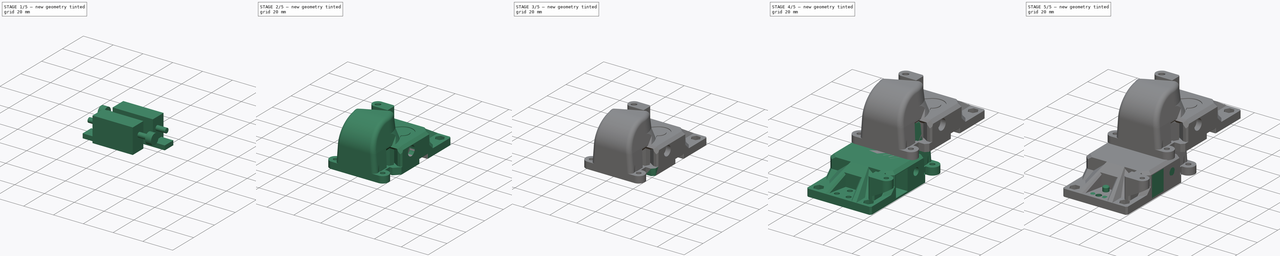
[diagram: build sequence overview — one tinted view per stage of 5, left to right]
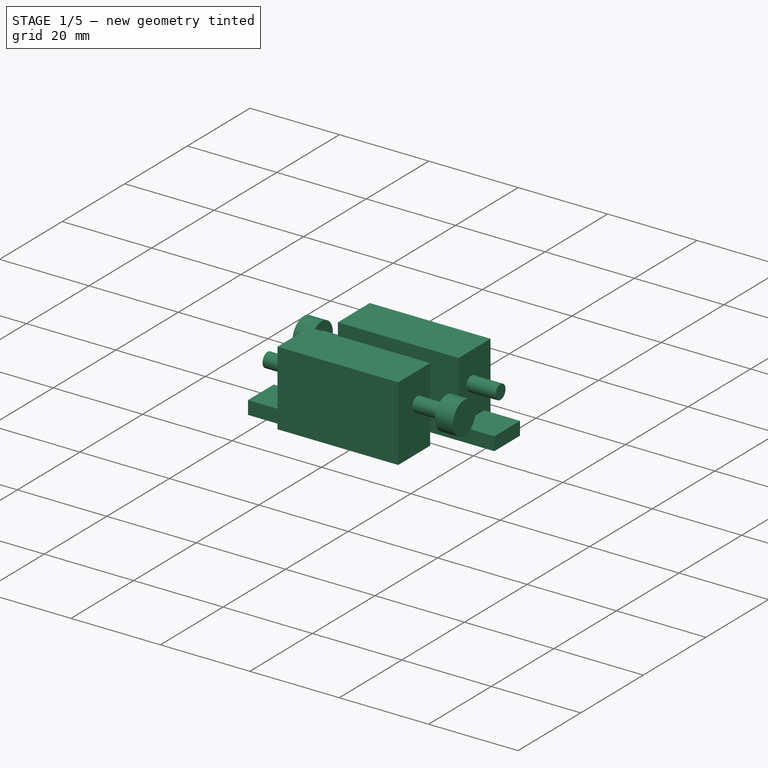
[diagram: stage 1 of 5 — iso view after this stage's code; geometry added in this stage tinted green]
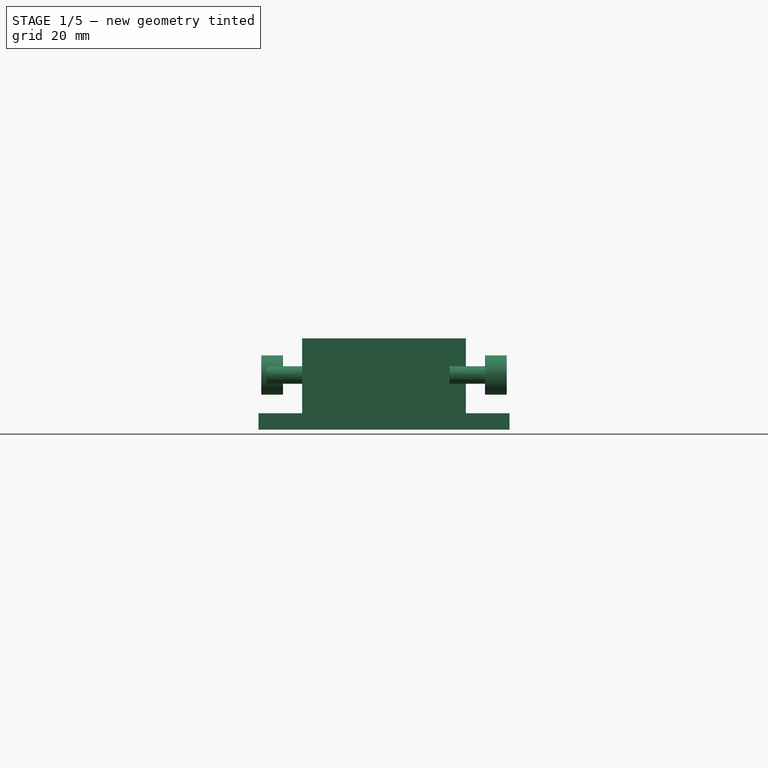
[diagram: stage 1 of 5 — front view after this stage's code; geometry added in this stage tinted green]
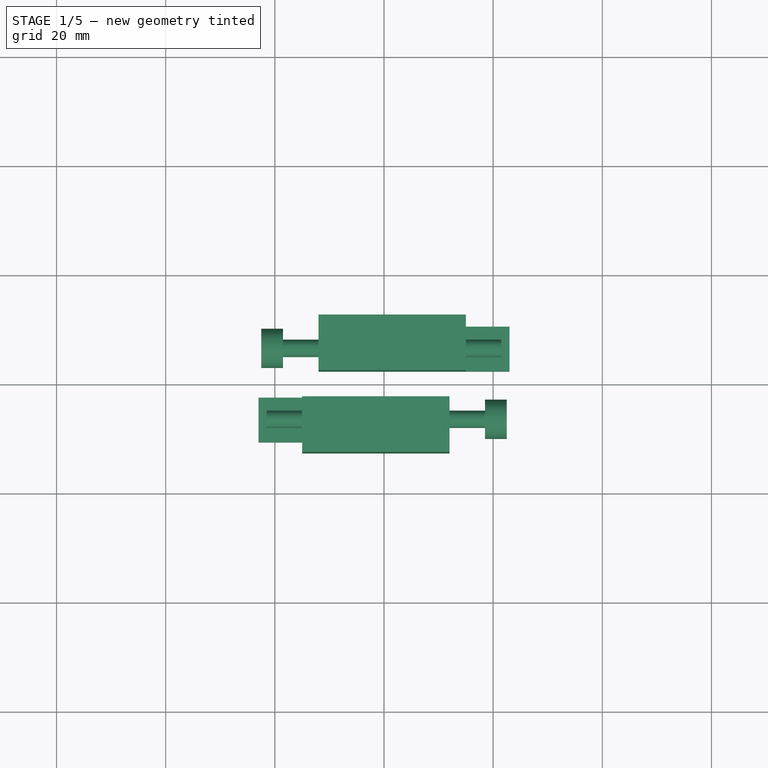
[diagram: stage 1 of 5 — top view after this stage's code; geometry added in this stage tinted green]
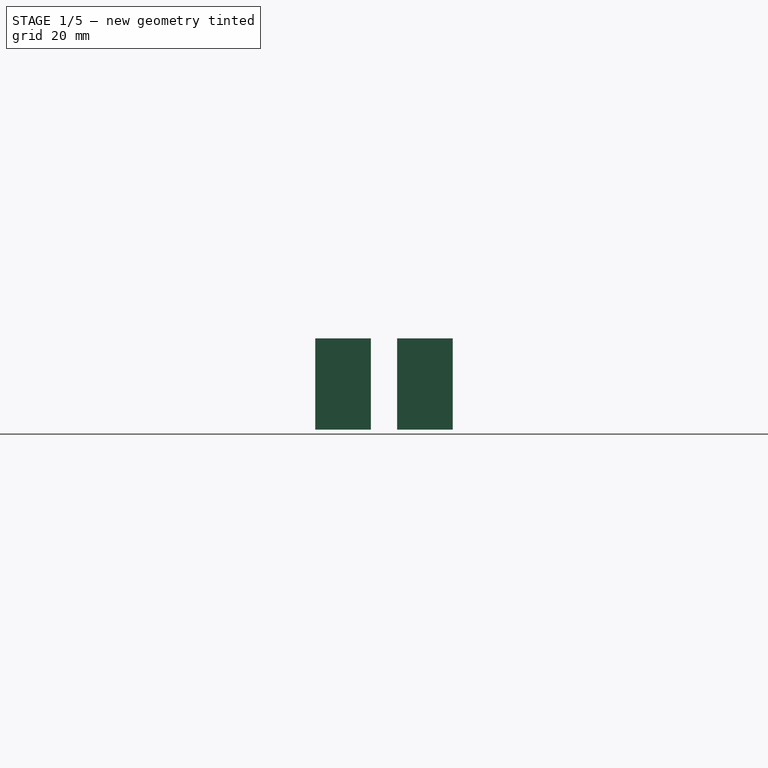
[diagram: stage 1 of 5 — right view after this stage's code; geometry added in this stage tinted green]
FCSTD DOCUMENT  (FreeCAD 0.19R24291 (Git))
Label: back-plate-eva-2p4
License: Other
LicenseURL: GPL3
objects: PartDesign::Pad×21, Sketcher::SketchObject×10, Part::MultiFuse×6, Part::Feature×6, PartDesign::Body×6, Part::Cylinder×5, Part::Box×4, Part::Cut×4, PartDesign::FeatureBase×2, PartDesign::Pocket×2, PartDesign::Chamfer×2, Part::MultiCommon×2, Part::Chamfer×1
note: 96 computed .brp shape members not serialized (recipe doc carries the construction recipe); baked Part::Feature solids carry a one-line shape summary decoded from their .brp

FEATURE [Part::Cylinder] Cylinder019
  Angle = 360
  AttacherType = Attacher::AttachEngine3D
  Height = 4
  Placement = pos=(-18.5,6.5,13.5) rot=(0.707107,0,-0.707107;3.14159rad)
  Radius = 3.6
FEATURE [Part::Box] Box024  label="belt-slot004"
  AttacherType = Attacher::AttachEngine3D
  Height = 10.2
  Length = 27
  Placement = pos=(-12,12.6,3.5) rot=(1,0,0;1.5708rad)
  Width = 16.7
FEATURE [Part::Box] Box025  label="belt-slot005"
  AttacherType = Attacher::AttachEngine3D
  Height = 10.2
  Length = 27
  Placement = pos=(-15,-2.4,3.5) rot=(1,0,0;1.5708rad)
  Width = 16.7
FEATURE [Part::Cylinder] Cylinder020
  Angle = 360
  AttacherType = Attacher::AttachEngine3D
  Height = 44
  Placement = pos=(21.5,6.5,13.5) rot=(0.707107,0,-0.707107;3.14159rad)
  Radius = 1.6
FEATURE [Part::Cylinder] Cylinder021
  Angle = 360
  AttacherType = Attacher::AttachEngine3D
  Height = 44
  Placement = pos=(-21.5,-6.5,13.5) rot=(0,1,0;1.5708rad)
  Radius = 1.6
FEATURE [Part::Cylinder] Cylinder022
  Angle = 360
  AttacherType = Attacher::AttachEngine3D
  Height = 4
  Placement = pos=(18.5,-6.5,13.5) rot=(0,1,0;1.5708rad)
  Radius = 3.6
FEATURE [Part::Box] Box027  label="Cube023"
  AttacherType = Attacher::AttachEngine3D
  Height = 3
  Length = 10
  Placement = pos=(13,4.9,3.5) rot=(0,0,1;0rad)
  Width = 8.2
FEATURE [Part::Box] Box028  label="Cube024"
  AttacherType = Attacher::AttachEngine3D
  Height = 3
  Length = 10
  Placement = pos=(-23,-8.1,3.5) rot=(0,0,1;0rad)
  Width = 8.2
FEATURE [Part::MultiFuse] Fusion001007011032
  Placement = pos=(0,-2.5,0) rot=(0,0,1;0rad)
  Shapes = -> [Box028,Box027]
FEATURE [Part::MultiFuse] Fusion001007011058
  Shapes = -> [Box024,Box025]
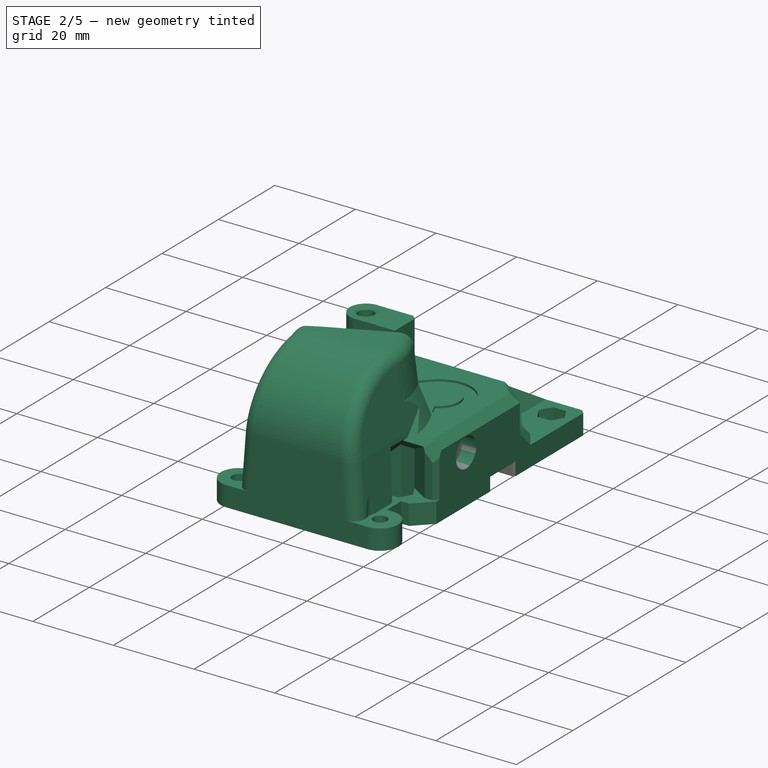
[diagram: stage 2 of 5 — iso view after this stage's code; geometry added in this stage tinted green]
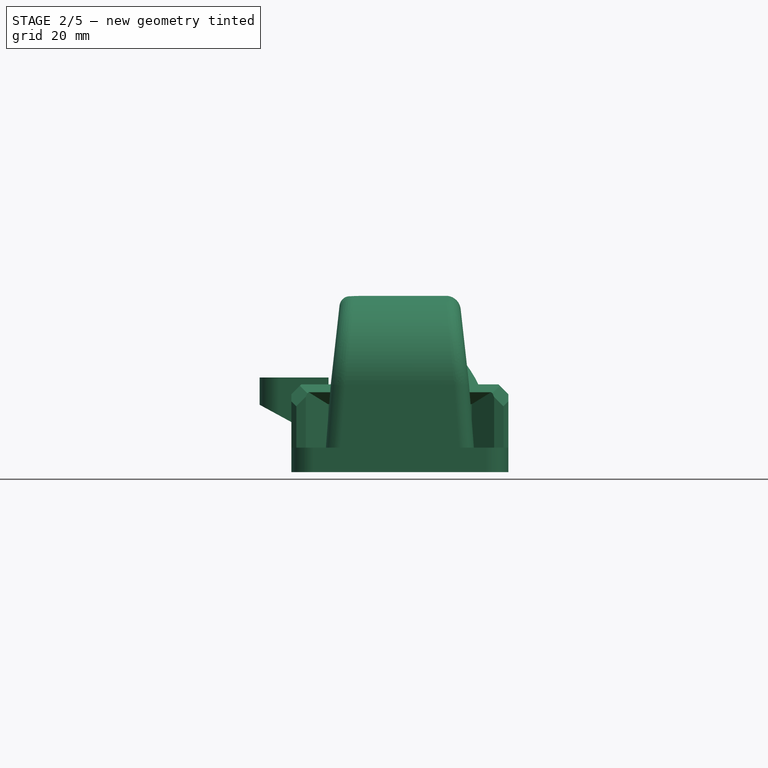
[diagram: stage 2 of 5 — front view after this stage's code; geometry added in this stage tinted green]
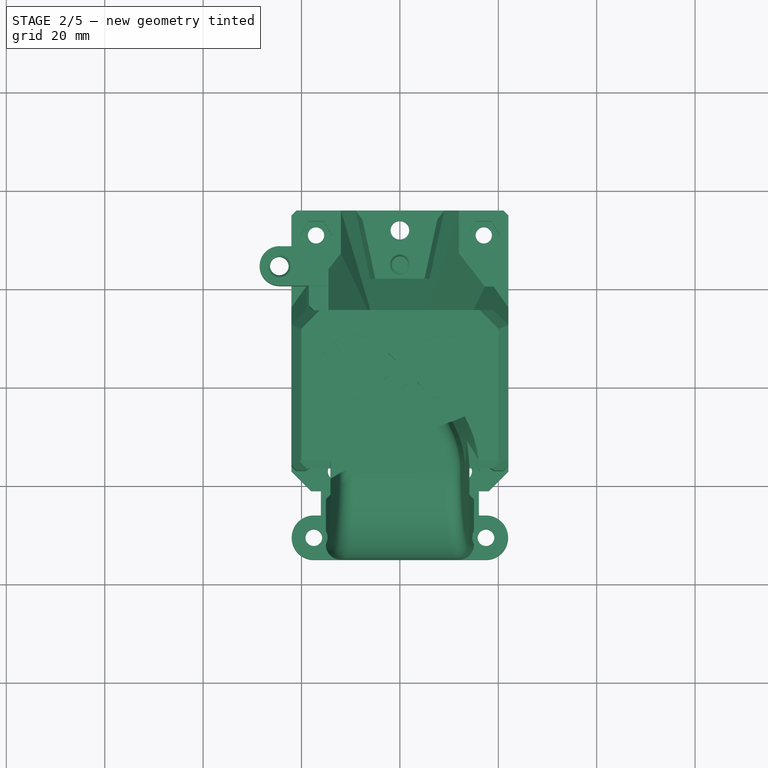
[diagram: stage 2 of 5 — top view after this stage's code; geometry added in this stage tinted green]
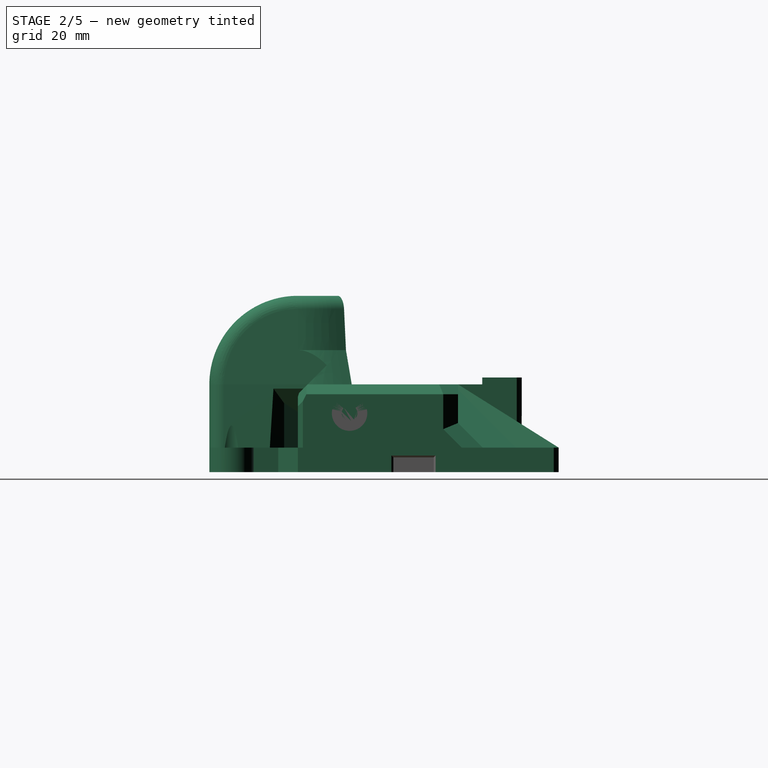
[diagram: stage 2 of 5 — right view after this stage's code; geometry added in this stage tinted green]
FEATURE [Part::MultiFuse] Fusion001007011029
  Placement = pos=(0,0,2) rot=(0,0,1;0rad)
  Shapes = -> [Cylinder022,Cylinder019,Cylinder020,Cylinder021]
FEATURE [Part::MultiFuse] Fusion001007011059  label="2020-cutout"
  Shapes = -> [Fusion001007011032,Fusion001007011058,Fusion001007011029]
FEATURE [PartDesign::Body] Body  label="back-plate-modified-base"
  BaseFeature = -> Part__Feature112001136
  Group = -> [BaseFeature,Pad,Pad001,Pad002,Pad003,Pad004,Pad005,Pad006,Pad007,Pad008,Sketch,Pocket,Pad009,Pad010,Pad011,Pad012,Sketch001,Pocket001,Sketch002,Pad013,Chamfer,Sketch003,Pad014,Sketch004,Pad015]
  Origin = -> Origin
  Placement = pos=(-5e-15,-40,17.5) rot=(0,0,1;3.14159rad)
  Tip = -> Pad015
FEATURE [Part::Feature] Body001003001001  label="back-plate-modified-base006"
  shape: bbox 51.76 x 72.2 x 37.05 mm, 205 faces (baked)
FEATURE [Part::Cut] Cut001005003001008
  Base = -> Body001003001001
  Tool = -> Fusion001007011059
FEATURE [Part::Cut] Cut001005003001009
  Base = -> Cut001005003001008
  Tool = -> Frantic_Trug_1_001001_solid003
FEATURE [Part::Feature] Fusion036012039011002025018010027013001002002001002001029004001010001015008003008006  label="hollow-cut002"
  shape: bbox 17 x 40.5 x 12.5 mm, 12 faces, 2 solids (baked)
FEATURE [Part::Cylinder] Cylinder  label="thread-insert-hole"
  Angle = 360
  AttacherType = Attacher::AttachEngine3D
  Height = 11
  Placement = pos=(-24.5,24.5,12.75) rot=(0,0,1;0rad)
  Radius = 1.9
FEATURE [Part::Feature] Cut001005003001012001  label="hole-fill"
  shape: bbox 8 x 8 x 9.896 mm, 3 faces (baked)
FEATURE [Part::Cut] Cut001005003001012005
  Base = -> Cut001005003001009
  Tool = -> Fusion036012039011002025018010027013001002002001002001029004001010001015008003008006
FEATURE [Part::MultiFuse] Fusion036012039011002025018010027013001002002001002001029004001010001015008003008008
  Shapes = -> [Cut001005003001012001,Cut001005003001012005]
FEATURE [Part::Cut] Cut001005003001012006
  Base = -> Fusion036012039011002025018010027013001002002001002001029004001010001015008003008008
  Tool = -> Cylinder
FEATURE [Part::Chamfer] Chamfer005021077002006007019003032019  label="back-plate-2p4-r3"
  Base = -> Cut001005003001012006
  Edges = 7 edges r=0.4: [Edge5,Edge940,Edge941,Edge942,Edge1051,Edge1052,Edge1053]
FEATURE [PartDesign::FeatureBase] BaseFeature001
  BaseFeature = -> Chamfer005021077002006007019003032019
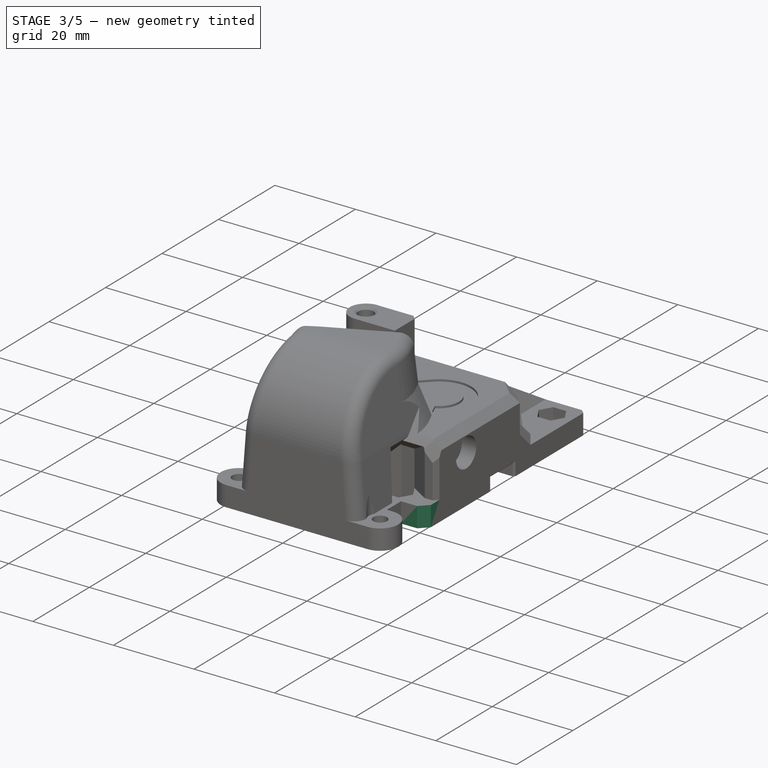
[diagram: stage 3 of 5 — iso view after this stage's code; geometry added in this stage tinted green]
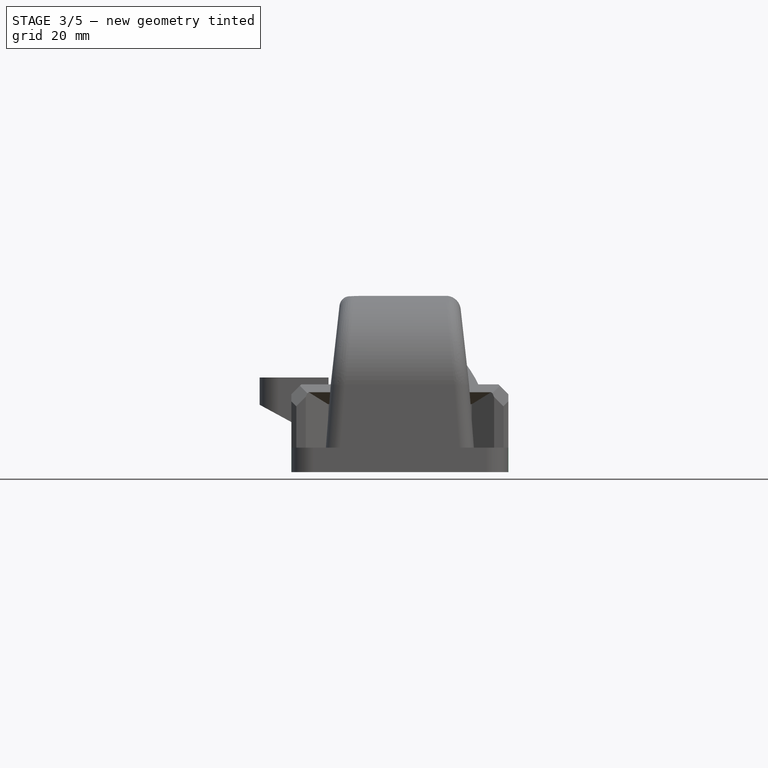
[diagram: stage 3 of 5 — front view after this stage's code; geometry added in this stage tinted green]
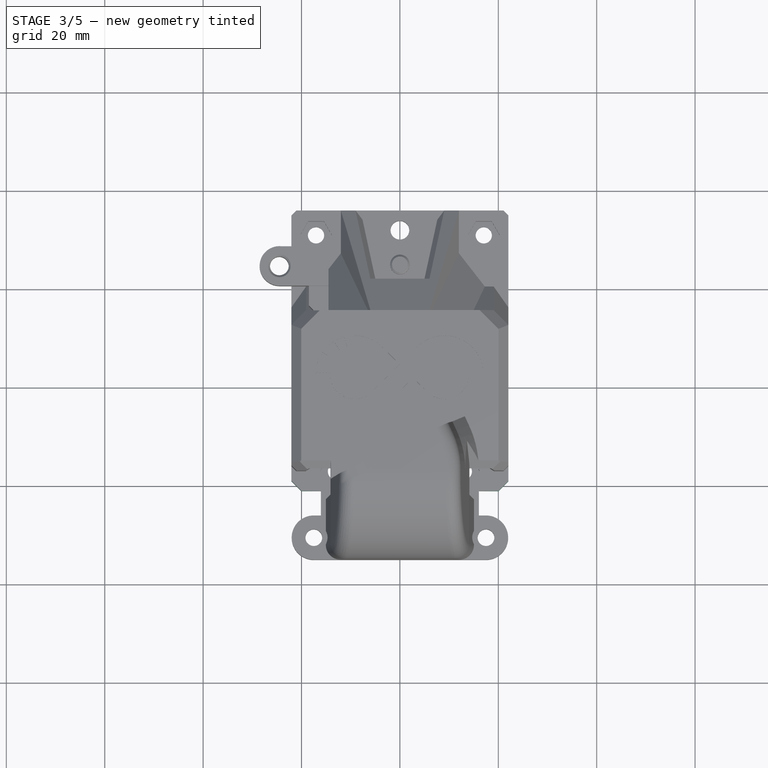
[diagram: stage 3 of 5 — top view after this stage's code; geometry added in this stage tinted green]
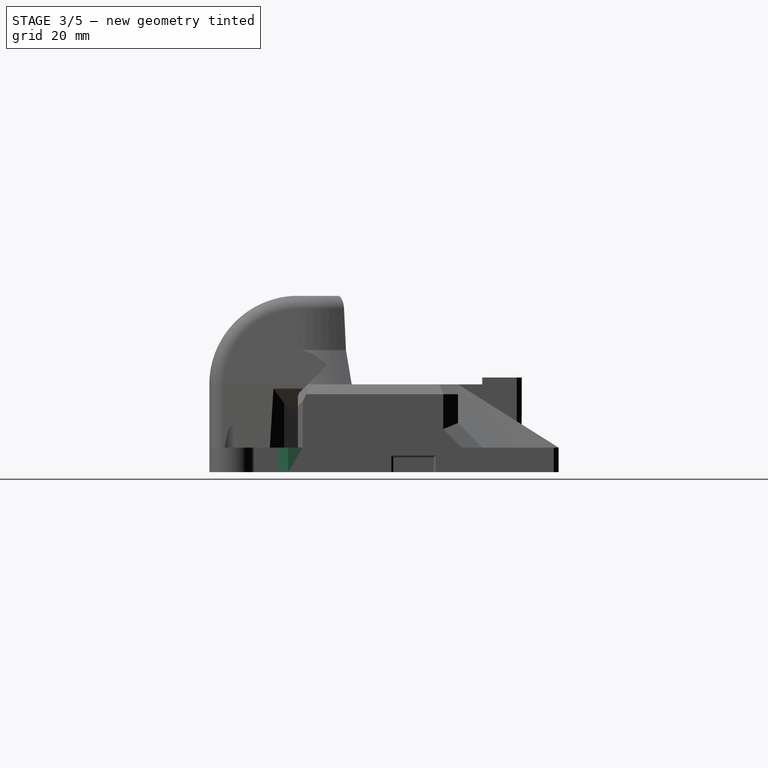
[diagram: stage 3 of 5 — right view after this stage's code; geometry added in this stage tinted green]
FEATURE [Sketcher::SketchObject] Sketch005
  FullyConstrained = false
  MapMode = 5
  Placement = pos=(0,0,0) rot=(0.57735,0.57735,0.57735;2.0944rad)
  Support = -> [YZ_Plane001]
  sketch-geometry (11):
    g0: LineSegment StartX=-14.5 StartY=8.5 StartZ=0 EndX=-20.5 EndY=8.5 EndZ=0
    g1: LineSegment StartX=-14.5 StartY=8.5 StartZ=0 EndX=-14.5 EndY=21 EndZ=0
    g2-g6: Circle x5 (B-spline internal-alignment scaffolding for g7; pole/knot coordinates omitted)
    g7: BSplineCurve PolesCount=5 KnotsCount=3 Degree=3 IsPeriodic=0
    g8: GeomPoint X=-14.5 Y=21 Z=0
    g9: GeomPoint X=-19.3188 Y=17.899 Z=0
    g10: GeomPoint X=-20.5 Y=8.5 Z=0
  constraints (11):
    c: Horizontal(g0)
    c: Coincident(g1,g0)
    c: Vertical(g1)
    c: Coincident(g7,g1)
    c: Weight(g2) = 1
    c: Equal(g2, g3-g6) x4
    c: Coincident(g7,g0)
    c: InternalAlignment(g2-g6 -> g7) x5
    c: InternalAlignment(g8,g7)
    c: InternalAlignment(g9,g7)
    c: InternalAlignment(g10,g7)
FEATURE [PartDesign::Pad] Pad016
  Direction = (1,1,1)
  Length = 17
  Length2 = 100
  Placement = pos=(0,0,0) rot=(0.57735,0.57735,0.57735;2.0944rad)
  Profile = -> Sketch005
  Type = 0
FEATURE [PartDesign::Body] Body001003001003  label="bottom-cut"
  Group = -> [Sketch005,Pad016]
  Origin = -> Origin001
  Placement = pos=(-8.5,0,0) rot=(0,0,1;0rad)
  Tip = -> Pad016
FEATURE [Sketcher::SketchObject] Sketch007
  FullyConstrained = false
  MapMode = 5
  Placement = pos=(0,0,0) rot=(0.57735,0.57735,0.57735;2.0944rad)
  Support = -> [YZ_Plane002]
  sketch-geometry (4):
    g0: LineSegment StartX=14.5 StartY=0 StartZ=0 EndX=20 EndY=0 EndZ=0
    g1: LineSegment StartX=14.5 StartY=11 StartZ=0 EndX=14.5 EndY=0 EndZ=0
    g2: LineSegment StartX=20 StartY=0 StartZ=0 EndX=20 EndY=5.5 EndZ=0
    g3: LineSegment StartX=20 StartY=5.5 StartZ=0 EndX=14.5 EndY=11 EndZ=0
  constraints (7):
    c: PointOnObject(g0,g-1)
    c: PointOnObject(g0,g-1)
    c: Coincident(g1,g0)
    c: Vertical(g1)
    c: Coincident(g2,g0)
    c: Vertical(g2)
    c: Coincident(g3,g2)
FEATURE [PartDesign::Pad] Pad017
  Direction = (1,1,1)
  Length = 30
  Length2 = 100
  Midplane = true
  Placement = pos=(0,0,0) rot=(0.57735,0.57735,0.57735;2.0944rad)
  Profile = -> Sketch007
  Type = 0
FEATURE [PartDesign::Body] Body001003001004
  Group = -> [Sketch007,Pad017]
  Origin = -> Origin002
  Tip = -> Pad017
FEATURE [Sketcher::SketchObject] Sketch008
  FullyConstrained = false
  MapMode = 5
  Support = -> [XY_Plane003]
  sketch-geometry (4):
    g0: LineSegment StartX=-15 StartY=14 StartZ=0 EndX=15 EndY=14 EndZ=0
    g1: LineSegment StartX=-15 StartY=14 StartZ=0 EndX=-11 EndY=20 EndZ=0
    g2: LineSegment StartX=15 StartY=14 StartZ=0 EndX=10 EndY=20 EndZ=0
    g3: LineSegment StartX=-11 StartY=20 StartZ=0 EndX=10 EndY=20 EndZ=0
  constraints (8):
    c: Horizontal(g0)
    c: DistanceX(g0,g0) = 30
    c: DistanceX(g0,g-1) = 15
    c: Coincident(g1,g0)
    c: Coincident(g2,g0)
    c: Coincident(g3,g1)
    c: Coincident(g3,g2)
    c: Horizontal(g3)
FEATURE [PartDesign::Pad] Pad018
  Direction = (1,1,1)
  Length = 10
  Length2 = 100
  Profile = -> Sketch008
  Type = 0
FEATURE [PartDesign::Body] Body001003001005
  Group = -> [Sketch008,Pad018]
  Origin = -> Origin003
  Tip = -> Pad018
FEATURE [Sketcher::SketchObject] Sketch009
  FullyConstrained = false
  MapMode = 5
  Placement = pos=(0,0,0) rot=(1,0,0;1.5708rad)
  Support = -> [XZ_Plane004]
  sketch-geometry (4):
    g0: LineSegment StartX=-7 StartY=0 StartZ=0 EndX=7 EndY=0 EndZ=0
    g1: LineSegment StartX=-7 StartY=0 StartZ=0 EndX=-2 EndY=13 EndZ=0
    g2: LineSegment StartX=7 StartY=0 StartZ=0 EndX=2 EndY=13 EndZ=0
    g3: LineSegment StartX=-2 StartY=13 StartZ=0 EndX=2 EndY=13 EndZ=0
  constraints (9):
    c: PointOnObject(g0,g-1)
    c: Horizontal(g0)
    c: DistanceX(g0,g0) = 14
    c: DistanceX(g0,g-1) = 7
    c: Coincident(g1,g0)
    c: Coincident(g2,g0)
    c: Coincident(g3,g1)
    c: Coincident(g3,g2)
    c: Horizontal(g3)
FEATURE [PartDesign::Pad] Pad019
  Direction = (1,1,1)
  Length = 10
  Length2 = 100
  Placement = pos=(0,0,0) rot=(1,0,0;1.5708rad)
  Profile = -> Sketch009
  Type = 0
FEATURE [PartDesign::Body] Body001003001006
  Group = -> [Sketch009,Pad019]
  Origin = -> Origin004
  Placement = pos=(0,21,0) rot=(0,0,1;0rad)
  Tip = -> Pad019
FEATURE [Part::MultiCommon] Common
  Shapes = -> [Body001003001006,Body001003001005]
FEATURE [Part::MultiCommon] Common001  label="top-cut"
  Placement = pos=(0,0,8.5) rot=(0,0,1;0rad)
  Shapes = -> [Common,Body001003001004]
FEATURE [Part::MultiFuse] Fusion  label="hollow-cut"
  Shapes = -> [Body001003001003,Common001]
FEATURE [Sketcher::SketchObject] Sketch010
  ExternalGeometry = -> [BaseFeature001]
  FullyConstrained = true
  MapMode = 5
  Placement = pos=(1e-15,-2e-16,3.5) rot=(1,0,0;3.14159rad)
  Support = -> [BaseFeature001]
  sketch-geometry (6):
    g0: LineSegment StartX=-22.05 StartY=17 StartZ=0 EndX=-18.05 EndY=21 EndZ=0
    g1: LineSegment StartX=-18.05 StartY=21 StartZ=0 EndX=-22.05 EndY=21 EndZ=0
    g2: LineSegment StartX=-22.05 StartY=21 StartZ=0 EndX=-22.05 EndY=17 EndZ=0
    g3: LineSegment StartX=18.05 StartY=21 StartZ=0 EndX=22.05 EndY=21 EndZ=0
    g4: LineSegment StartX=22.05 StartY=21 StartZ=0 EndX=22.05 EndY=17 EndZ=0
    g5: LineSegment StartX=22.05 StartY=17 StartZ=0 EndX=18.05 EndY=21 EndZ=0
  constraints (14):
    c: Coincident(g-3,g0)
    c: Coincident(g0,g-3)
    c: Coincident(g0,g1)
    c: Horizontal(g1)
    c: Coincident(g1,g2)
    c: Coincident(g2,g0)
    c: Coincident(g-4,g3)
    c: Horizontal(g3)
    c: Coincident(g3,g4)
    c: Coincident(g4,g-4)
    c: Coincident(g4,g5)
    c: Coincident(g5,g3)
    c: Vertical(g2)
    c: Vertical(g4)
FEATURE [PartDesign::Pad] Pad020
  BaseFeature = -> BaseFeature001
  Direction = (1,1,1)
  Length = 10
  Length2 = 100
  Profile = -> Sketch010
  Reversed = true
  Type = 3
  UpToFace = -> BaseFeature001 [Face347]
FEATURE [PartDesign::Chamfer] Chamfer005021077002006007019003032020
  Angle = 45
  Base = -> Pad020 [Edge1241,Edge1153]
  BaseFeature = -> Pad020
  ChamferType = 0
  FlipDirection = false
  Refine = true
  Size = 2
  Size2 = 1
  SupportTransform = false
FEATURE [PartDesign::Body] Body001003001007
  BaseFeature = -> Chamfer005021077002006007019003032019
  Group = -> [BaseFeature001,Sketch010,Pad020,Chamfer005021077002006007019003032020]
  Origin = -> Origin005
  Tip = -> Chamfer005021077002006007019003032020
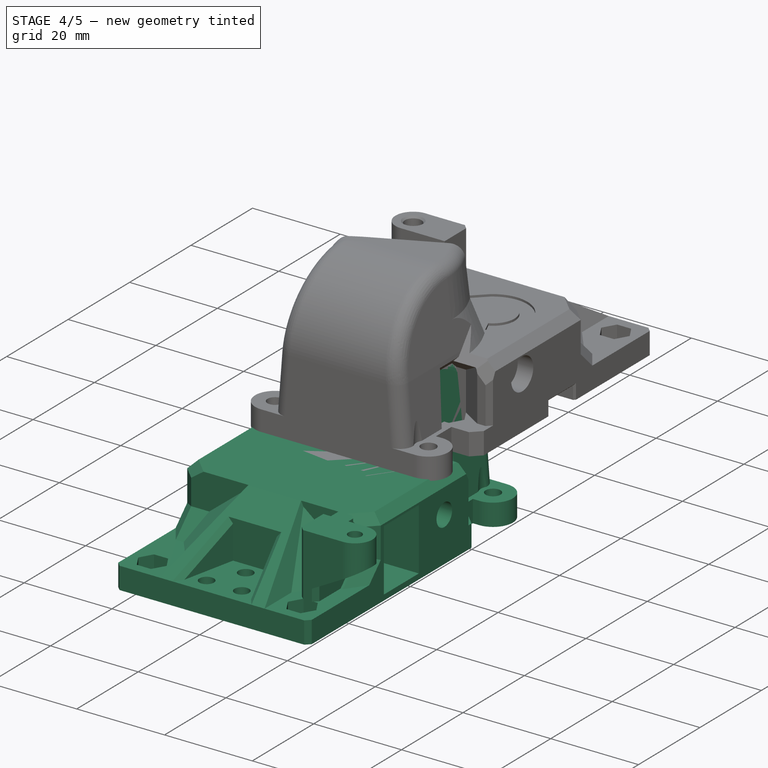
[diagram: stage 4 of 5 — iso view after this stage's code; geometry added in this stage tinted green]
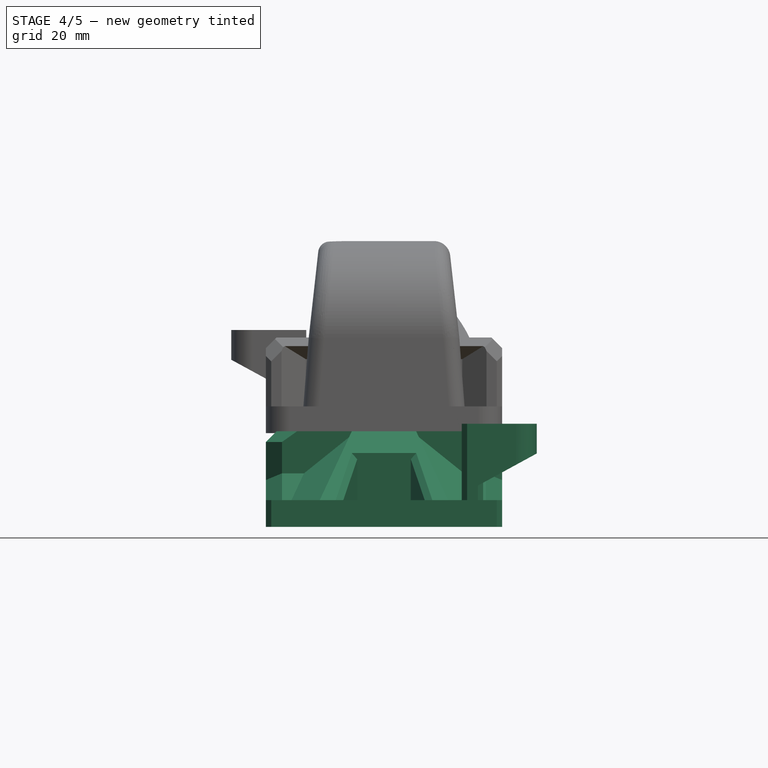
[diagram: stage 4 of 5 — front view after this stage's code; geometry added in this stage tinted green]
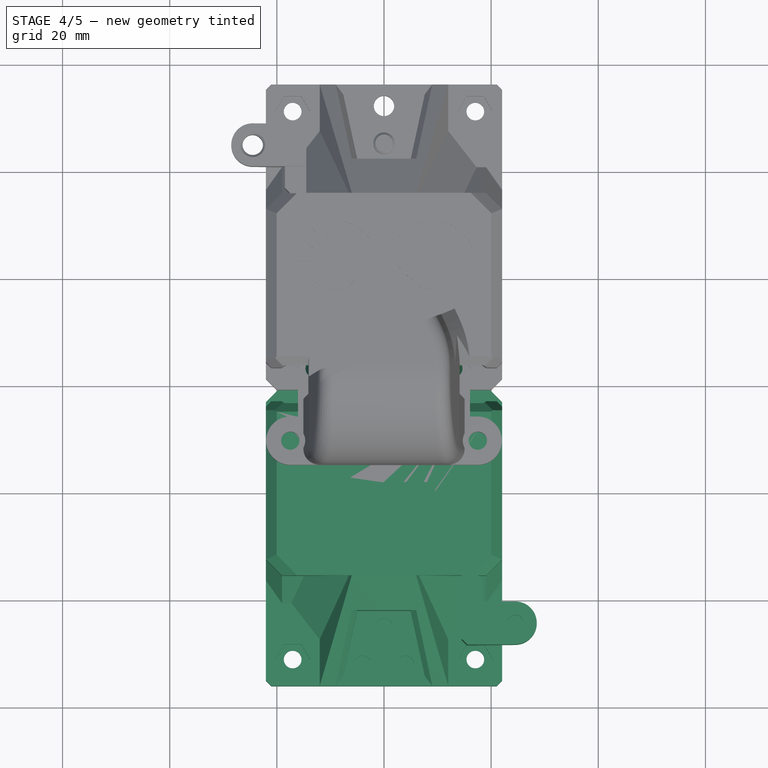
[diagram: stage 4 of 5 — top view after this stage's code; geometry added in this stage tinted green]
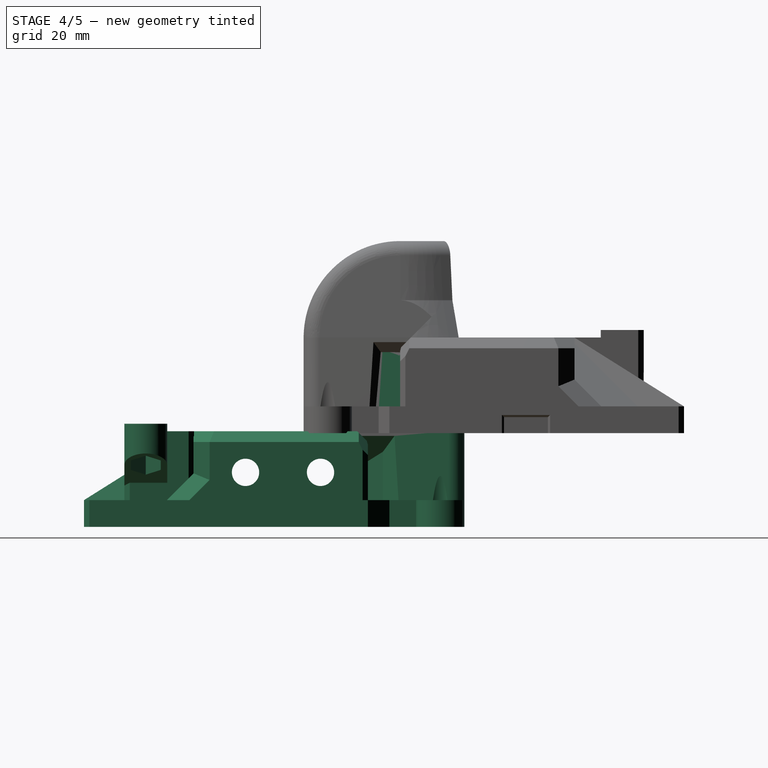
[diagram: stage 4 of 5 — right view after this stage's code; geometry added in this stage tinted green]
FEATURE [Part::Feature] Frantic_Trug_1_001001_solid001  label="snakeoil-logo"
  Placement = pos=(13,-13.5,20.85) rot=(0,0,1;0rad)
  shape: bbox 37 x 22 x 4 mm, 291 faces (baked)
FEATURE [Part::Feature] Part__Feature112001136  label="back_corexy-2p4-origin"
  Placement = pos=(-5e-15,-40,17.5) rot=(0,0,1;3.14159rad)
  shape: bbox 50.57 x 71.01 x 35.86 mm, 357 faces (baked)
FEATURE [PartDesign::FeatureBase] BaseFeature
  BaseFeature = -> Part__Feature112001136
FEATURE [PartDesign::Pad] Pad
  BaseFeature = -> BaseFeature
  Direction = (1,1,1)
  Length = 3
  Length2 = 100
  Profile = -> BaseFeature [Face215]
  Type = 0
FEATURE [PartDesign::Pad] Pad001
  BaseFeature = -> Pad
  Direction = (1,1,1)
  Length = 3
  Length2 = 100
  Profile = -> Pad [Face217]
  Type = 0
FEATURE [PartDesign::Pad] Pad002
  BaseFeature = -> Pad001
  Direction = (1,1,1)
  Length = 0.4
  Length2 = 100
  Profile = -> Pad001 [Face273]
  Type = 0
FEATURE [PartDesign::Pad] Pad003
  BaseFeature = -> Pad002
  Direction = (1,1,1)
  Length = 0.4
  Length2 = 100
  Profile = -> Pad002 [Face240]
  Type = 0
FEATURE [PartDesign::Pad] Pad004
  BaseFeature = -> Pad003
  Direction = (1,1,1)
  Length = 0.4
  Length2 = 100
  Profile = -> Pad003 [Face249]
  Type = 0
FEATURE [PartDesign::Pad] Pad005
  BaseFeature = -> Pad004
  Direction = (1,1,1)
  Length = 0.4
  Length2 = 100
  Profile = -> Pad004 [Face218]
  Type = 0
FEATURE [PartDesign::Pad] Pad006
  BaseFeature = -> Pad005
  Direction = (1,1,1)
  Length = 0.4
  Length2 = 100
  Profile = -> Pad005 [Face229]
  Type = 0
FEATURE [PartDesign::Pad] Pad007
  BaseFeature = -> Pad006
  Direction = (1,1,1)
  Length = 0.4
  Length2 = 100
  Profile = -> Pad006 [Face214]
  Type = 0
FEATURE [PartDesign::Pad] Pad008
  BaseFeature = -> Pad007
  Direction = (1,1,1)
  Length = 0.4
  Length2 = 100
  Profile = -> Pad007 [Face181]
  Type = 0
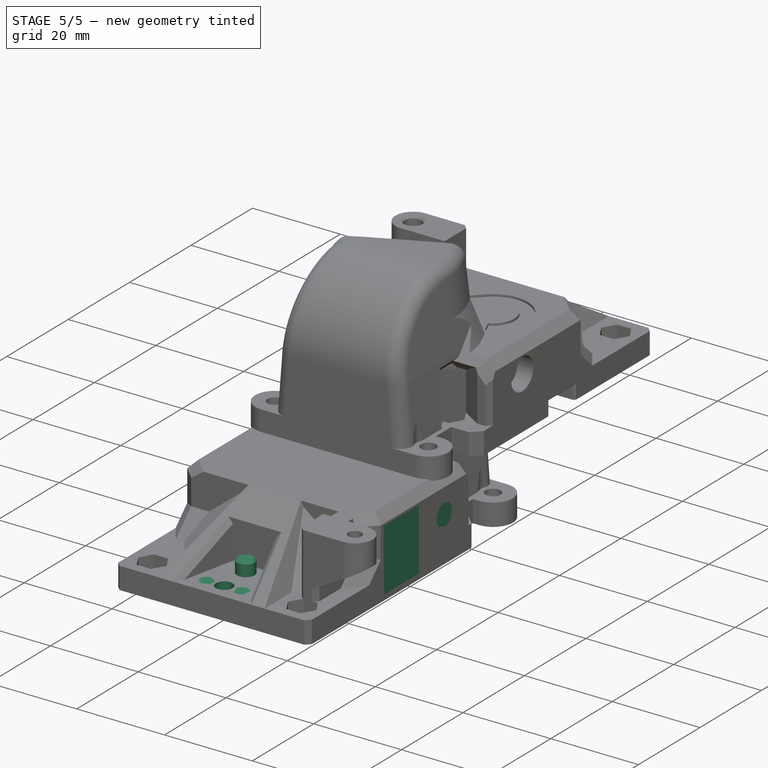
[diagram: stage 5 of 5 — iso view after this stage's code; geometry added in this stage tinted green]
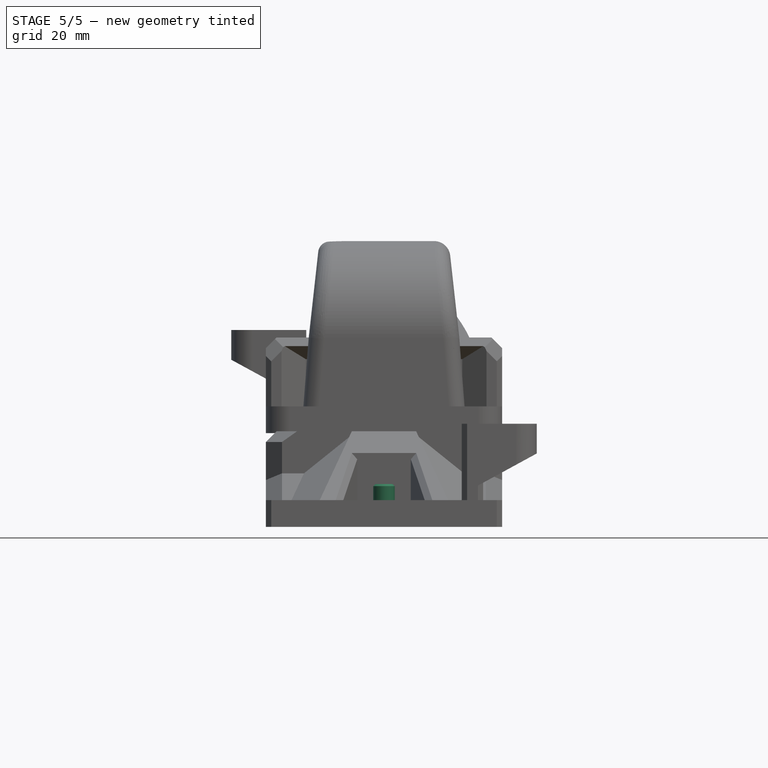
[diagram: stage 5 of 5 — front view after this stage's code; geometry added in this stage tinted green]
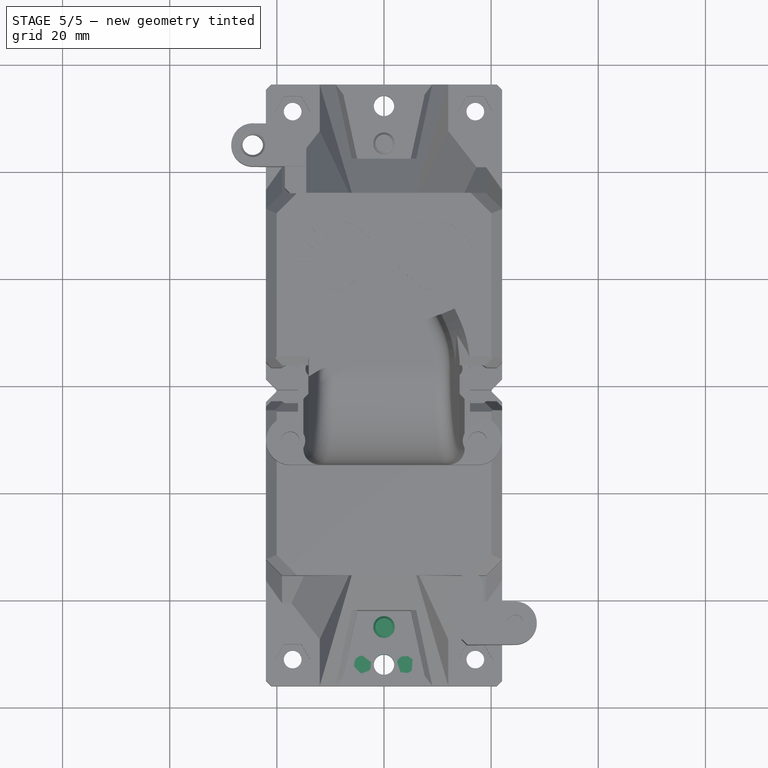
[diagram: stage 5 of 5 — top view after this stage's code; geometry added in this stage tinted green]
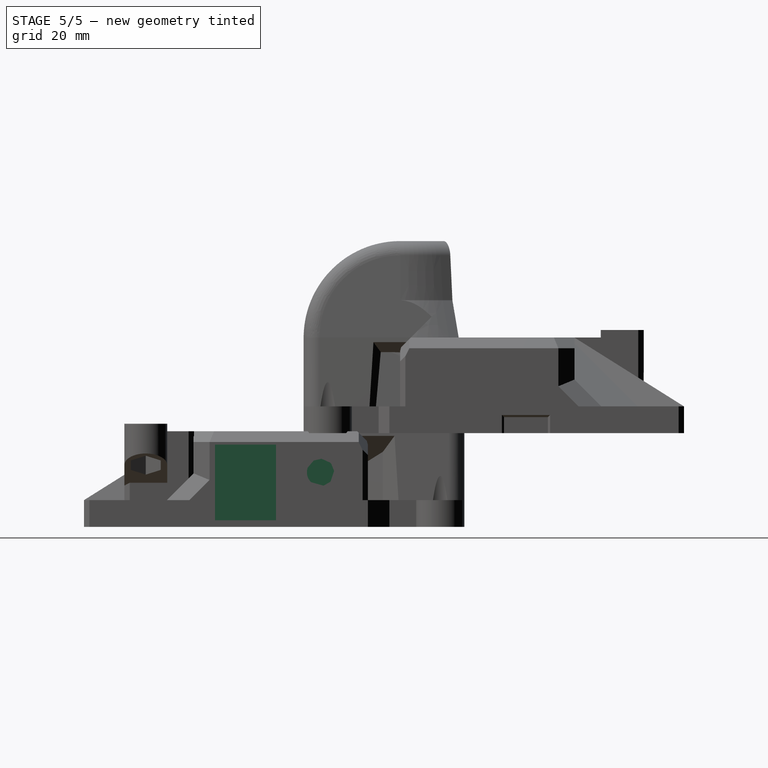
[diagram: stage 5 of 5 — right view after this stage's code; geometry added in this stage tinted green]
FEATURE [Sketcher::SketchObject] Sketch
  FullyConstrained = true
  MapMode = 5
  Placement = pos=(10.646,-22.8304,1.18e-14) rot=(0.954201,0.211541,0.211541;1.61766rad)
  Support = -> [Pad008]
  sketch-geometry (4):
    g0: LineSegment StartX=-20.25 StartY=20.45 StartZ=0 EndX=0.25 EndY=20.45 EndZ=0
    g1: LineSegment StartX=0.25 StartY=20.45 StartZ=0 EndX=0.25 EndY=5.25 EndZ=0
    g2: LineSegment StartX=0.25 StartY=5.25 StartZ=0 EndX=-20.25 EndY=5.25 EndZ=0
    g3: LineSegment StartX=-20.25 StartY=5.25 StartZ=0 EndX=-20.25 EndY=20.45 EndZ=0
  constraints (12):
    c: Coincident(g0,g1)
    c: Coincident(g1,g2)
    c: Coincident(g2,g3)
    c: Coincident(g3,g0)
    c: Horizontal(g0)
    c: Horizontal(g2)
    c: Vertical(g1)
    c: Vertical(g3)
    c: DistanceX(g0,g0) = 20.5
    c: DistanceY(g1,g1) = 15.2
    c: DistanceY(g-1,g2) = 5.25
    c: DistanceX(g2,g-1) = 20.25
FEATURE [PartDesign::Pocket] Pocket
  BaseFeature = -> Pad008
  Length = 0
  Length2 = 100
  Profile = -> Sketch
  Type = 3
  UpToFace = -> Pad008 [Face234]
FEATURE [Part::Feature] Frantic_Trug_1_001001_solid003  label="snakeoil-logo002"
  Placement = pos=(13,-13.5,20.85) rot=(0,0,1;0rad)
  shape: bbox 37 x 22 x 4 mm, 291 faces (baked)
FEATURE [PartDesign::Pad] Pad009
  BaseFeature = -> Pocket
  Direction = (1,1,1)
  Length = 1.7
  Length2 = 100
  Profile = -> Pocket [Face241]
  Type = 0
FEATURE [PartDesign::Pad] Pad010
  BaseFeature = -> Pad009
  Direction = (1,1,1)
  Length = 1.7
  Length2 = 100
  Profile = -> Pad009 [Face240]
  Type = 0
FEATURE [PartDesign::Pad] Pad011
  BaseFeature = -> Pad010
  Direction = (1,1,1)
  Length = 1.7
  Length2 = 100
  Profile = -> Pad010 [Face240]
  Type = 0
FEATURE [PartDesign::Pad] Pad012
  BaseFeature = -> Pad011
  Direction = (1,1,1)
  Length = 3
  Length2 = 100
  Profile = -> Pad011 [Face158]
  Type = 0
FEATURE [Sketcher::SketchObject] Sketch001
  FullyConstrained = true
  MapMode = 5
  Placement = pos=(2.7e-15,-5e-16,-9) rot=(0,0,1;0rad)
  Support = -> [Pad012]
  sketch-geometry (1):
    g0: Circle CenterX=0 CenterY=-72 CenterZ=0 NormalX=0 NormalY=0 NormalZ=1 AngleXU=0 Radius=1.9
  constraints (3):
    c: PointOnObject(g0,g-2)
    c: Radius(g0) = 1.9
    c: DistanceY(g0,g-1) = 72
FEATURE [PartDesign::Pocket] Pocket001
  BaseFeature = -> Pad012
  Length = 5
  Length2 = 100
  Profile = -> Sketch001
  Type = 1
FEATURE [Sketcher::SketchObject] Sketch002
  FullyConstrained = false
  MapMode = 5
  Placement = pos=(2.7e-15,-5e-16,-9) rot=(0,0,1;0rad)
  Support = -> [Pocket001]
  sketch-geometry (1):
    g0: Circle CenterX=0 CenterY=-65 CenterZ=0 NormalX=0 NormalY=0 NormalZ=1 AngleXU=0 Radius=2
  constraints (1):
    c: Radius(g0) = 2
FEATURE [PartDesign::Pad] Pad013
  BaseFeature = -> Pocket001
  Direction = (1,1,1)
  Length = 3
  Length2 = 100
  Profile = -> Sketch002
  Type = 0
FEATURE [PartDesign::Chamfer] Chamfer
  Angle = 45
  Base = -> Pad013 [Edge666,Edge156]
  BaseFeature = -> Pad013
  ChamferType = 0
  FlipDirection = false
  Size = 0.4
  Size2 = 1
  SupportTransform = false
FEATURE [Sketcher::SketchObject] Sketch003
  FullyConstrained = false
  MapMode = 5
  Placement = pos=(22.05,5.1e-15,6.6e-15) rot=(0.57735,0.57735,0.57735;2.0944rad)
  Support = -> [Chamfer]
  sketch-geometry (4):
    g0: LineSegment StartX=-51.8756 StartY=1.65616 StartZ=0 EndX=-39.8061 EndY=1.65616 EndZ=0
    g1: LineSegment StartX=-39.8061 StartY=1.65616 StartZ=0 EndX=-39.8061 EndY=-13.4122 EndZ=0
    g2: LineSegment StartX=-39.8061 StartY=-13.4122 StartZ=0 EndX=-51.8756 EndY=-13.4122 EndZ=0
    g3: LineSegment StartX=-51.8756 StartY=-13.4122 StartZ=0 EndX=-51.8756 EndY=1.65616 EndZ=0
  constraints (8):
    c: Coincident(g0,g1)
    c: Coincident(g1,g2)
    c: Coincident(g2,g3)
    c: Coincident(g3,g0)
    c: Horizontal(g0)
    c: Horizontal(g2)
    c: Vertical(g1)
    c: Vertical(g3)
FEATURE [PartDesign::Pad] Pad014
  BaseFeature = -> Chamfer
  Direction = (1,1,1)
  Length = 10
  Length2 = 100
  Profile = -> Sketch003
  Type = 3
  UpToFace = -> Chamfer [Face17]
FEATURE [Sketcher::SketchObject] Sketch004
  FullyConstrained = false
  MapMode = 5
  Placement = pos=(-22.05,-5.1e-15,-6.6e-15) rot=(0.57735,-0.57735,-0.57735;2.0944rad)
  Support = -> [Pad014]
  sketch-geometry (4):
    g0: LineSegment StartX=25.8 StartY=1.5 StartZ=0 EndX=38 EndY=1.5 EndZ=0
    g1: LineSegment StartX=38 StartY=1.5 StartZ=0 EndX=38 EndY=-13 EndZ=0
    g2: LineSegment StartX=38 StartY=-13 StartZ=0 EndX=25.8 EndY=-13 EndZ=0
    g3: LineSegment StartX=25.8 StartY=-13 StartZ=0 EndX=25.8 EndY=1.5 EndZ=0
  constraints (9):
    c: Coincident(g0,g1)
    c: Coincident(g1,g2)
    c: Coincident(g2,g3)
    c: Coincident(g3,g0)
    c: Horizontal(g0)
    c: Horizontal(g2)
    c: Vertical(g1)
    c: Vertical(g3)
    c: DistanceX(g-1,g0) = 25.8
FEATURE [PartDesign::Pad] Pad015
  BaseFeature = -> Pad014
  Direction = (1,1,1)
  Length = 10
  Length2 = 100
  Profile = -> Sketch004
  Type = 3
  UpToFace = -> Pad014 [Face18]
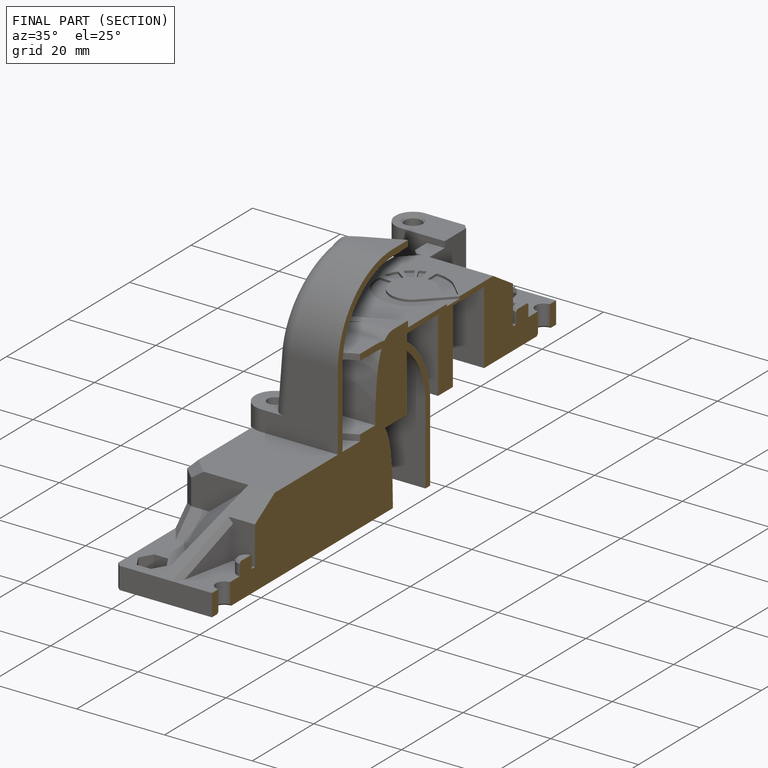
[diagram: finished part — half-section view (interior)]
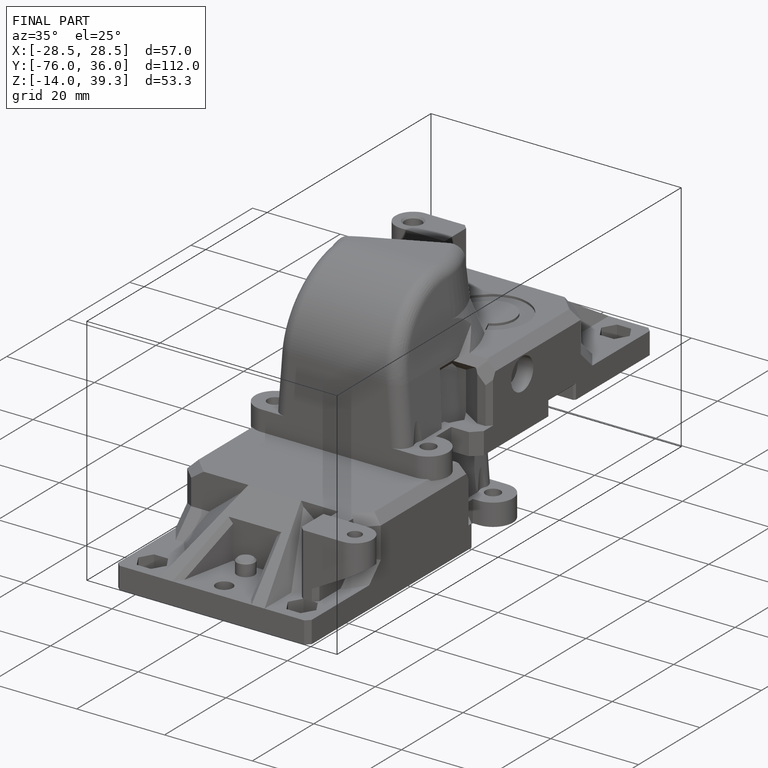
[diagram: finished part — iso view with bounding-box wireframe]
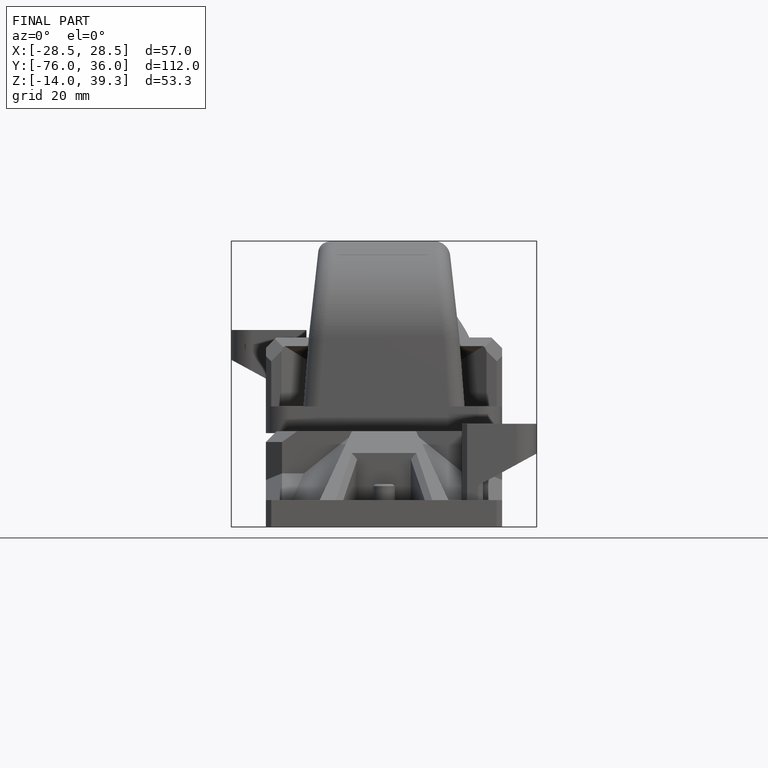
[diagram: finished part — front view with bounding-box wireframe]
